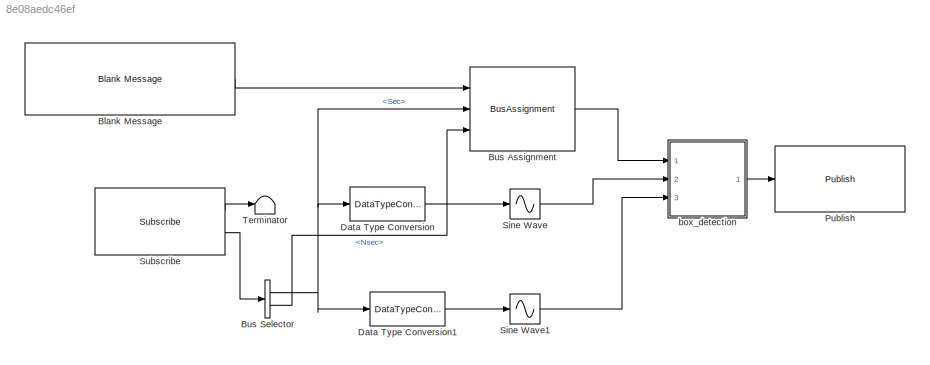
MODEL slx_8e08aedc46ef
KIND model
CONFIG AbsTol = auto
CONFIG FixedStep = 1
CONFIG MaxStep = auto
CONFIG MinStep = auto
CONFIG RelTol = 1e-3
CONFIG SampleTimeConstraint = Unconstrained
CONFIG Solver = FixedStepAuto
CONFIG SolverMode = Auto
CONFIG SolverName = FixedStepAuto
CONFIG StartTime = 0.0
CONFIG StopTime = inf
BLOCK [Reference] Blank Message  REF=robotlib/Blank Message
  Ports = [0, 1]
  SourceBlock = robotlib/Blank Message
  SourceLibraryInfo = This block requires Robotics System Toolbox
  SourceType = ROS Blank Message
BLOCK [BusAssignment] Bus Assignment
  AssignedSignals = Header.Stamp.Sec,Header.Stamp.Nsec
  Ports = [3, 1]
BLOCK [BusSelector] Bus Selector
  OutputSignals = Clock_.Sec,Clock_.Nsec
  Ports = [1, 2]
BLOCK [DataTypeConversion] Data Type Conversion
  RndMeth = Floor
  SaturateOnIntegerOverflow = off
BLOCK [DataTypeConversion] Data Type Conversion1
  RndMeth = Floor
  SaturateOnIntegerOverflow = off
BLOCK [Reference] Publish  REF=robotlib/Publish
  Ports = [1]
  SourceBlock = robotlib/Publish
  SourceLibraryInfo = This block requires Robotics System Toolbox
  SourceType = ROS Publish
BLOCK [Sin] Sine Wave
  Amplitude = 3
  Frequency = 0.2
  Ports = [1, 1]
  SampleTime = 0
  TimeSource = Use external signal
BLOCK [Sin] Sine Wave1
  Amplitude = 3
  Frequency = 0.2
  Phase = pi/2
  Ports = [1, 1]
  SampleTime = 0
  TimeSource = Use external signal
BLOCK [Reference] Subscribe  REF=robotlib/Subscribe
  Ports = [0, 2]
  SourceBlock = robotlib/Subscribe
  SourceLibraryInfo = This block requires Robotics System Toolbox
  SourceType = ROS Subscribe
BLOCK [Terminator] Terminator
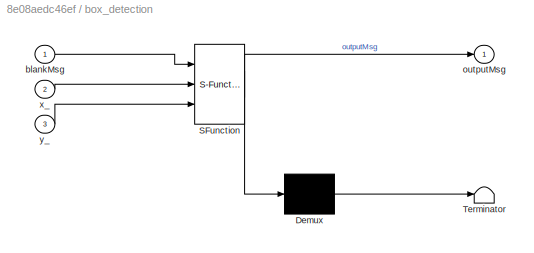
BLOCK [SubSystem] box_detection
  ErrorFcn = Stateflow.Translate.translate
  PermitHierarchicalResolution = ExplicitOnly
  Ports = [3, 1]
  RequestExecContextInheritance = off
  SFBlockType = MATLAB Function
  TreatAsAtomicUnit = on
  Variant = off
BLOCK [Demux] box_detection/ Demux 
  Outputs = 1
  Ports = [1, 1]
BLOCK [S-Function] box_detection/ SFunction 
  EnableBusSupport = on
  FunctionName = sf_sfun
  PortCounts = [3 2]
  Ports = [3, 2]
  SFunctionDeploymentMode = off
  Tag = Stateflow S-Function polygone_task 2
BLOCK [Terminator] box_detection/ Terminator 
BLOCK [Inport] box_detection/blankMsg
  IconDisplay = Port number
BLOCK [Outport] box_detection/outputMsg
  IconDisplay = Port number
BLOCK [Inport] box_detection/x_
  IconDisplay = Port number
  Port = 2
BLOCK [Inport] box_detection/y_
  IconDisplay = Port number
  Port = 3
LINE Blank Message:1 -> Bus Assignment:1
LINE Bus Assignment:1 -> box_detection:1
NET Bus Selector:1 -> Bus Assignment:2, Data Type Conversion1:1, Data Type Conversion:1
LINE Bus Selector:2 -> Bus Assignment:3
LINE Data Type Conversion1:1 -> Sine Wave1:1
LINE Data Type Conversion:1 -> Sine Wave:1
LINE Sine Wave1:1 -> box_detection:3
LINE Sine Wave:1 -> box_detection:2
LINE Subscribe:1 -> Terminator:1
LINE Subscribe:2 -> Bus Selector:1
LINE box_detection:1 -> Publish:1
note: NET lines group one-source signal fan-out (src -> all destinations, sorted); 1:1 wires keep LINE
CHART box_detection states=1 transitions=1
  STATE_LABEL 'eML_blk_kernel()'
  STATE_LABEL "SCRIPT:\nfunction outputMsg = fcn(blankMsg, x_,y_)\n%#codegen\n\npersistent seq;\n\nif isempty(seq)\n    seq=uint32(0);\nend\n\nseq = seq +1;\noutputMsg = blankMsg;\nx = single(x_);\ny = single(y_);\nz = single(0);\n\noutputMsg.Polygon.Points_SL_Info.CurrentLength = uint32(5);\nstr = 'catvehicle/odom';\n% initialize the header and set its values\nstrLength = length(str);\noutputMsg.Header.Seq = seq;\noutputMsg.Header....<+790ch>"
